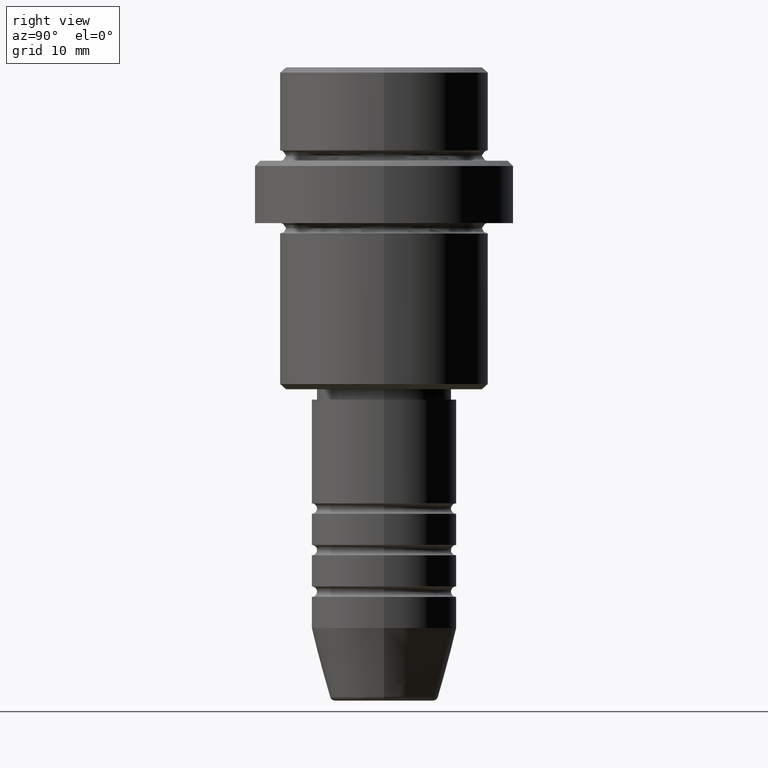
[diagram: clean part render]
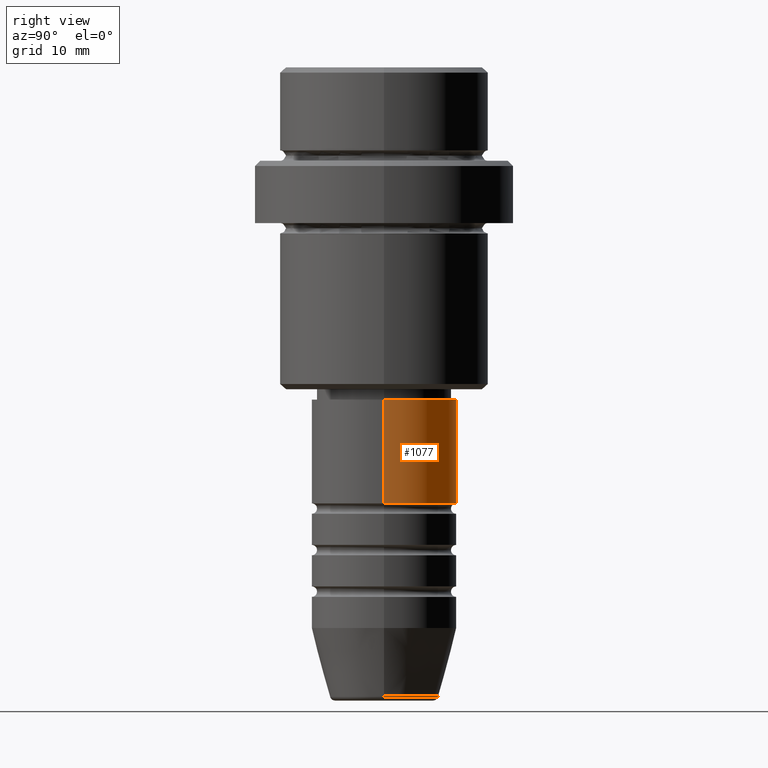
[diagram: same view with one face highlighted and labeled with its STEP entity id]
A machine part, right view. The second image highlights one B-rep face of the part: STEP entity #1077.
In plain terms, the highlighted cylindrical surface (partial cylindrical patch) has radius 7 mm, axis along (-0, -0, 1).
Its self-contained STEP definition (entity closure, byte-faithful):
#10 = CYLINDRICAL_SURFACE ( 'NONE', #1322, 7.000000000000000000 ) ;
#74 = VERTEX_POINT ( 'NONE', #591 ) ;
#127 = CARTESIAN_POINT ( 'NONE',  ( 7.000000000000000000, 0.000000000000000000, -32.00000000000000000 ) ) ;
#158 = CARTESIAN_POINT ( 'NONE',  ( -7.000000000000000000, 8.572527594031473190E-16, 0.000000000000000000 ) ) ;
#167 = DIRECTION ( 'NONE',  ( -0.000000000000000000, -0.000000000000000000, 1.000000000000000000 ) ) ;
#277 = DIRECTION ( 'NONE',  ( 1.000000000000000000, 0.000000000000000000, 0.000000000000000000 ) ) ;
#322 = EDGE_CURVE ( 'NONE', #74, #1020, #361, .T. ) ;
#324 = DIRECTION ( 'NONE',  ( -0.000000000000000000, -0.000000000000000000, 1.000000000000000000 ) ) ;
#361 = LINE ( 'NONE', #158, #566 ) ;
#377 = EDGE_LOOP ( 'NONE', ( #793, #1095, #702, #417 ) ) ;
#417 = ORIENTED_EDGE ( 'NONE', *, *, #1361, .F. ) ;
#440 = FACE_OUTER_BOUND ( 'NONE', #377, .T. ) ;
#469 = LINE ( 'NONE', #777, #1366 ) ;
#507 = CARTESIAN_POINT ( 'NONE',  ( -7.000000000000000000, 8.572527594031473190E-16, -32.00000000000000000 ) ) ;
#543 = DIRECTION ( 'NONE',  ( 1.000000000000000000, 0.000000000000000000, 0.000000000000000000 ) ) ;
#566 = VECTOR ( 'NONE', #1018, 1000.000000000000000 ) ;
#591 = CARTESIAN_POINT ( 'NONE',  ( -7.000000000000000000, 8.572527594031473190E-16, -41.99999999999988631 ) ) ;
#638 = EDGE_CURVE ( 'NONE', #949, #1020, #1229, .T. ) ;
#693 = EDGE_CURVE ( 'NONE', #853, #74, #1071, .T. ) ;
#702 = ORIENTED_EDGE ( 'NONE', *, *, #638, .F. ) ;
#703 = CARTESIAN_POINT ( 'NONE',  ( 7.000000000000000000, 0.000000000000000000, -41.99999999999988631 ) ) ;
#726 = CARTESIAN_POINT ( 'NONE',  ( 0.000000000000000000, 0.000000000000000000, 0.000000000000000000 ) ) ;
#777 = CARTESIAN_POINT ( 'NONE',  ( 7.000000000000000000, 0.000000000000000000, 0.000000000000000000 ) ) ;
#790 = CARTESIAN_POINT ( 'NONE',  ( 0.000000000000000000, 0.000000000000000000, -41.99999999999988631 ) ) ;
#793 = ORIENTED_EDGE ( 'NONE', *, *, #693, .T. ) ;
#853 = VERTEX_POINT ( 'NONE', #703 ) ;
#949 = VERTEX_POINT ( 'NONE', #127 ) ;
#1018 = DIRECTION ( 'NONE',  ( -0.000000000000000000, -0.000000000000000000, 1.000000000000000000 ) ) ;
#1020 = VERTEX_POINT ( 'NONE', #507 ) ;
#1053 = DIRECTION ( 'NONE',  ( -0.000000000000000000, -0.000000000000000000, 1.000000000000000000 ) ) ;
#1071 = CIRCLE ( 'NONE', #1305, 7.000000000000000000 ) ;
#1077 = ADVANCED_FACE ( 'NONE', ( #440 ), #10, .T. ) ;
#1095 = ORIENTED_EDGE ( 'NONE', *, *, #322, .T. ) ;
#1229 = CIRCLE ( 'NONE', #1370, 7.000000000000000000 ) ;
#1277 = CARTESIAN_POINT ( 'NONE',  ( 0.000000000000000000, 0.000000000000000000, -32.00000000000000000 ) ) ;
#1295 = DIRECTION ( 'NONE',  ( 1.000000000000000000, 0.000000000000000000, 0.000000000000000000 ) ) ;
#1305 = AXIS2_PLACEMENT_3D ( 'NONE', #790, #167, #277 ) ;
#1322 = AXIS2_PLACEMENT_3D ( 'NONE', #726, #324, #543 ) ;
#1329 = DIRECTION ( 'NONE',  ( -0.000000000000000000, -0.000000000000000000, 1.000000000000000000 ) ) ;
#1361 = EDGE_CURVE ( 'NONE', #853, #949, #469, .T. ) ;
#1366 = VECTOR ( 'NONE', #1329, 1000.000000000000000 ) ;
#1370 = AXIS2_PLACEMENT_3D ( 'NONE', #1277, #1053, #1295 ) ;